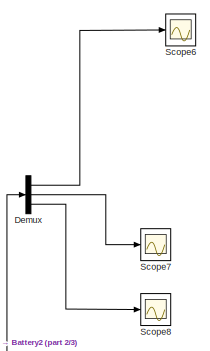
[diagram: root canvas - part 1/3, middle left region]
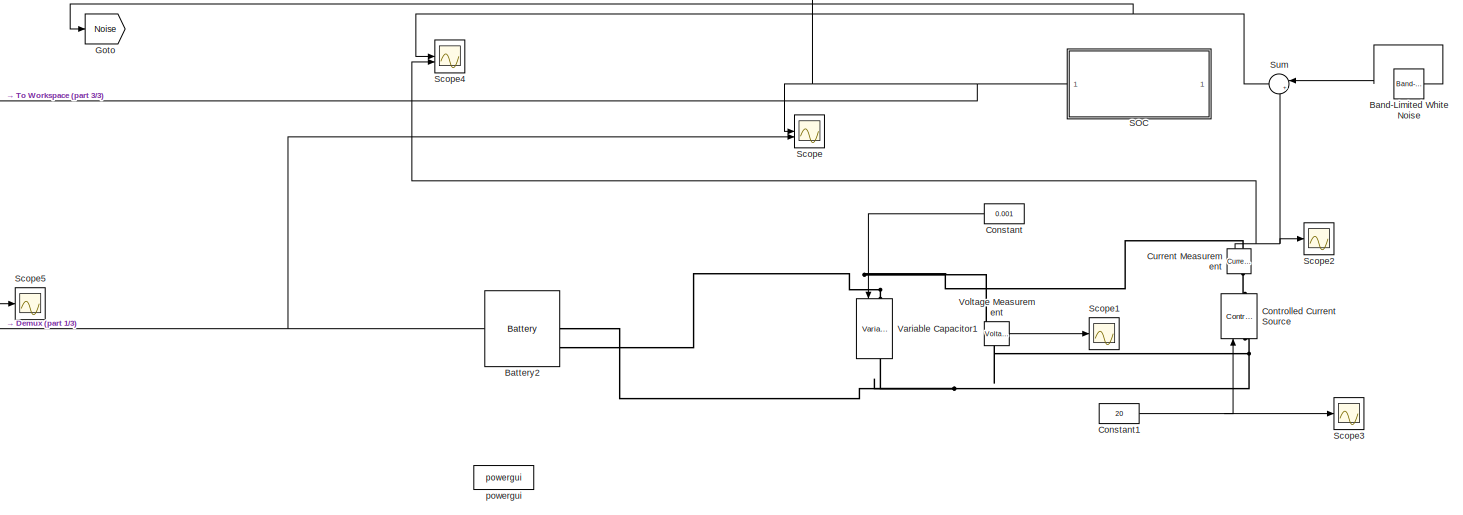
[diagram: root canvas - part 2/3, most of the canvas]
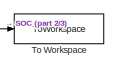
[diagram: root canvas - part 3/3, top left region]
MODEL slx_daff91a5f93b
KIND model
CONFIG AbsTol = auto
CONFIG EnableMultiTasking = off
CONFIG FixedStep = auto
CONFIG MaxStep = auto
CONFIG MinStep = auto
CONFIG RelTol = 1e-3
CONFIG SampleTimeConstraint = Unconstrained
CONFIG SolverName = VariableStepAuto
CONFIG StartTime = 0.0
CONFIG StopTime = 100.0
BLOCK [Reference] Band-Limited White Noise  REF=simulink/Sources/Band-Limited
White Noise
  SourceBlock = simulink/Sources/Band-Limited\nWhite Noise
  SourceType = Band-Limited White Noise.
BLOCK [Reference] Battery2  REF=spsBatteryLib/Battery
  LibrarySourceBlock = sps_lib/Sources/Battery
  SourceBlock = spsBatteryLib/Battery
  SourceType = Battery
BLOCK [Constant] Constant
  NameLocation = top
  Value = 0.001
BLOCK [Constant] Constant1
  Value = 20
BLOCK [Reference] Controlled Current Source  REF=spsControlledCurrentSourceLib/Controlled Current Source
  LibrarySourceBlock = sps_lib/Sources/Controlled Current Source
  SourceBlock = spsControlledCurrentSourceLib/Controlled Current Source
  SourceType = Controlled Current Source
BLOCK [Reference] Current Measurement  REF=spsCurrentMeasurementLib/Current Measurement
  LibrarySourceBlock = sps_lib/Sensors and Measurements/Current Measurement
  NameLocation = right
  SourceBlock = spsCurrentMeasurementLib/Current Measurement
  SourceType = Current Measurement
  UserDataPersistent = on
BLOCK [Demux] Demux
  Outputs = 3
BLOCK [Goto] Goto
  GotoTag = Noise
  TagVisibility = global
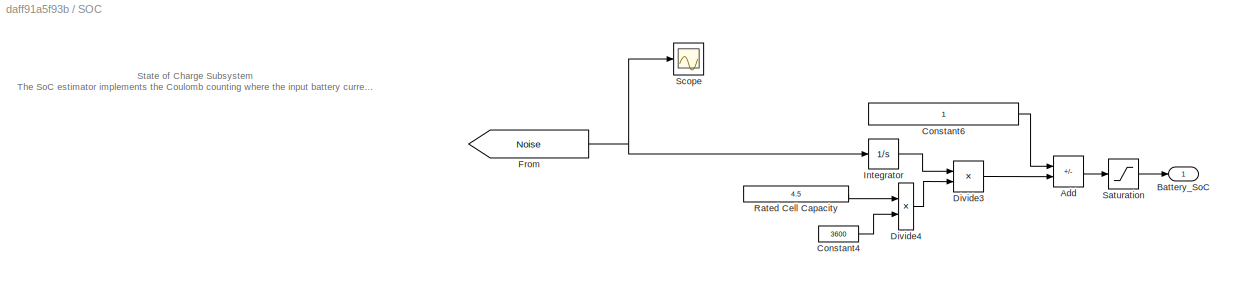
BLOCK [SubSystem] SOC
  NameLocation = top
BLOCK [Sum] SOC/Add
  IconShape = rectangular
  Inputs = +-
BLOCK [Outport] SOC/Battery_SoC
BLOCK [Constant] SOC/Constant4
  Value = 3600
BLOCK [Constant] SOC/Constant6
BLOCK [Product] SOC/Divide3
  Inputs = */
BLOCK [Product] SOC/Divide4
  Inputs = **
BLOCK [From] SOC/From
  GotoTag = Noise
  TagVisibility = global
BLOCK [Integrator] SOC/Integrator
BLOCK [Constant] SOC/Rated Cell Capacity
  OutMax = 4.5
  OutMin = 3.2
  Value = 4.5
BLOCK [Saturate] SOC/Saturation
  LowerLimit = 0
  UpperLimit = 1
BLOCK [Scope] SOC/Scope
  Floating = off
  NumInputPorts = 1
  ScopeSpecificationString = Simulink.scopes.TimeScopeBlockCfg('CurrentConfiguration', extmgr.ConfigurationSet(extmgr.Configuration('Core','General UI',true),extmgr.Configuration('Core','Source UI',true),extmgr.Configuration('Sources','WiredSimulink',true,'DataLoggingVariableName','ScopeData2'),extmgr.Configuration('Visuals','Time Domain',true,'SerializedDisplays',{struct('MinYLimReal','-2.80722','MaxYLimReal','48.11281','YLa...<+1484ch>
BLOCK [Scope] Scope
  Floating = off
  NumInputPorts = 2
  ScopeSpecificationString = Simulink.scopes.TimeScopeBlockCfg('CurrentConfiguration', extmgr.ConfigurationSet(extmgr.Configuration('Core','General UI',true),extmgr.Configuration('Core','Source UI',true),extmgr.Configuration('Sources','WiredSimulink',true,'DataLogging',true,'DataLoggingVariableName','ScopeData1'),extmgr.Configuration('Visuals','Time Domain',true,'TimeAxisLabels','All','SerializedDisplays',{struct('MinYLimReal...<+1641ch>
BLOCK [Scope] Scope1
  Floating = off
  NumInputPorts = 1
  ScopeSpecificationString = Simulink.scopes.TimeScopeBlockCfg('CurrentConfiguration', extmgr.ConfigurationSet(extmgr.Configuration('Core','General UI',true),extmgr.Configuration('Core','Source UI',true),extmgr.Configuration('Sources','WiredSimulink',true,'DataLoggingVariableName','ScopeData2'),extmgr.Configuration('Visuals','Time Domain',true,'SerializedDisplays',{struct('MinYLimReal','2.60247','MaxYLimReal','3.85705','YLabe...<+1519ch>
BLOCK [Scope] Scope2
  Floating = off
  NumInputPorts = 1
  ScopeSpecificationString = Simulink.scopes.TimeScopeBlockCfg('CurrentConfiguration', extmgr.ConfigurationSet(extmgr.Configuration('Core','General UI',true),extmgr.Configuration('Core','Source UI',true),extmgr.Configuration('Sources','WiredSimulink',true,'DataLoggingVariableName','ScopeData3'),extmgr.Configuration('Visuals','Time Domain',true,'SerializedDisplays',{struct('MinYLimReal','10.00000','MaxYLimReal','30.00000','YLa...<+1473ch>
BLOCK [Scope] Scope3
  Floating = off
  NumInputPorts = 1
  ScopeSpecificationString = Simulink.scopes.TimeScopeBlockCfg('CurrentConfiguration', extmgr.ConfigurationSet(extmgr.Configuration('Core','General UI',true),extmgr.Configuration('Core','Source UI',true),extmgr.Configuration('Sources','WiredSimulink',true,'DataLoggingVariableName','ScopeData4'),extmgr.Configuration('Visuals','Time Domain',true),extmgr.Configuration('Tools','Plot Navigation',true),extmgr.Configuration('Tools',...<+40ch>
BLOCK [Scope] Scope4
  Floating = off
  NumInputPorts = 2
  ScopeSpecificationString = Simulink.scopes.TimeScopeBlockCfg('CurrentConfiguration', extmgr.ConfigurationSet(extmgr.Configuration('Core','General UI',true,'DisplayFullSourceName',true),extmgr.Configuration('Core','Source UI',true),extmgr.Configuration('Sources','WiredSimulink',true,'DataLoggingVariableName','ScopeData5','SampleTime','1'),extmgr.Configuration('Visuals','Time Domain',true,'SerializedDisplays',{struct('MinYLim...<+1801ch>
BLOCK [Scope] Scope5
  Floating = off
  NumInputPorts = 1
  ScopeSpecificationString = Simulink.scopes.TimeScopeBlockCfg('CurrentConfiguration', extmgr.ConfigurationSet(extmgr.Configuration('Core','General UI',true),extmgr.Configuration('Core','Source UI',true),extmgr.Configuration('Sources','WiredSimulink',true,'DataLoggingVariableName','DataNoise','DataLogging',true),extmgr.Configuration('Visuals','Time Domain',true,'SerializedDisplays',{struct('MinYLimReal','0.85295','MaxYLimReal...<+1500ch>
BLOCK [Scope] Scope6
  Floating = off
  NumInputPorts = 1
  ScopeSpecificationString = Simulink.scopes.TimeScopeBlockCfg('CurrentConfiguration', extmgr.ConfigurationSet(extmgr.Configuration('Core','General UI',true),extmgr.Configuration('Core','Source UI',true),extmgr.Configuration('Sources','WiredSimulink',true,'DataLoggingVariableName','DatawithoutNoise','DataLogging',true),extmgr.Configuration('Visuals','Time Domain',true,'SerializedDisplays',{struct('MinYLimReal','56.1118','MaxY...<+1513ch>
BLOCK [Scope] Scope7
  Floating = off
  NumInputPorts = 1
  ScopeSpecificationString = Simulink.scopes.TimeScopeBlockCfg('CurrentConfiguration', extmgr.ConfigurationSet(extmgr.Configuration('Core','General UI',true),extmgr.Configuration('Core','Source UI',true),extmgr.Configuration('Sources','WiredSimulink',true,'DataLoggingVariableName','ScopeData2'),extmgr.Configuration('Visuals','Time Domain',true,'SerializedDisplays',{struct('MinYLimReal','4.30676','MaxYLimReal','161.23901','YLa...<+1492ch>
BLOCK [Scope] Scope8
  Floating = off
  NumInputPorts = 1
  ScopeSpecificationString = Simulink.scopes.TimeScopeBlockCfg('CurrentConfiguration', extmgr.ConfigurationSet(extmgr.Configuration('Core','General UI',true),extmgr.Configuration('Core','Source UI',true),extmgr.Configuration('Sources','WiredSimulink',true,'DataLoggingVariableName','ScopeData3'),extmgr.Configuration('Visuals','Time Domain',true,'SerializedDisplays',{struct('MinYLimReal','2.60247','MaxYLimReal','3.85705','YLabe...<+1484ch>
BLOCK [Sum] Sum
  Inputs = |++
  NameLocation = top
BLOCK [ToWorkspace] To Workspace
  FixptAsFi = on
  MaxDataPoints = inf
  SampleTime = -1
  SaveFormat = Timeseries
  VariableName = Soc_Data
BLOCK [Reference] Variable Capacitor1  REF=spsVariableCapacitorLib/Variable Capacitor
  LibrarySourceBlock = sps_lib/Passives/Variable Capacitor
  NameLocation = left
  SourceBlock = spsVariableCapacitorLib/Variable Capacitor
  SourceType = Variable Capacitor
BLOCK [Reference] Voltage Measurement  REF=spsVoltageMeasurementLib/Voltage Measurement
  LibrarySourceBlock = sps_lib/Sensors and Measurements/Voltage Measurement
  SourceBlock = spsVoltageMeasurementLib/Voltage Measurement
  SourceType = Voltage Measurement
  UserDataPersistent = on
BLOCK [Reference] powergui  REF=sps_lib/powergui
  LibrarySourceBlock = sps_lib/powergui
  SourceBlock = sps_lib/powergui
  SourceType = PSB option menu block
ANNOTATION SOC: State of Charge Subsystem The SoC estimator implements the Coulomb counting where the input battery current is accumulated over time and divided by the rated capacity to a percentage of the current capacity to the overall capacity. The output of this subsystem outputs the state of charge as a percentage.
LINE Band-Limited White Noise:1 -> Sum:1
NET Battery2:1 -> Demux:1, Scope:2
NET Constant1:1 -> Controlled Current Source:1, Scope3:1
LINE Constant:1 -> Variable Capacitor1:1
NET Current Measurement:1 -> Scope2:1, Scope4:2, Sum:2
LINE Demux:1 -> Scope6:1
LINE Demux:2 -> Scope7:1
LINE Demux:3 -> Scope8:1
LINE SOC/Add:1 -> SOC/Saturation:1
LINE SOC/Constant4:1 -> SOC/Divide4:2
LINE SOC/Constant6:1 -> SOC/Add:1
LINE SOC/Divide3:1 -> SOC/Add:2
LINE SOC/Divide4:1 -> SOC/Divide3:2
NET SOC/From:1 -> SOC/Integrator:1, SOC/Scope:1
LINE SOC/Integrator:1 -> SOC/Divide3:1
LINE SOC/Rated Cell Capacity:1 -> SOC/Divide4:1
LINE SOC/Saturation:1 -> SOC/Battery_SoC:1
NET SOC:1 -> Scope5:1, Scope:1, To Workspace:1
NET Sum:1 -> Goto:1, Scope4:1
LINE Voltage Measurement:1 -> Scope1:1
PNET net1: Battery2:LConn1 -- Controlled Current Source:LConn1 -- Variable Capacitor1:RConn1 -- Voltage Measurement:LConn1
PNET net2: Battery2:LConn2 -- Current Measurement:RConn1 -- Variable Capacitor1:LConn1 -- Voltage Measurement:LConn2
PLINE Controlled Current Source:RConn1 -- Current Measurement:LConn1
note: NET lines group one-source signal fan-out (src -> all destinations, sorted); 1:1 wires keep LINE; PNET lines group multi-terminal physical nets as a canonical sorted terminal list (undirected conserving connections); 2-terminal nets keep the pairwise PLINE form
